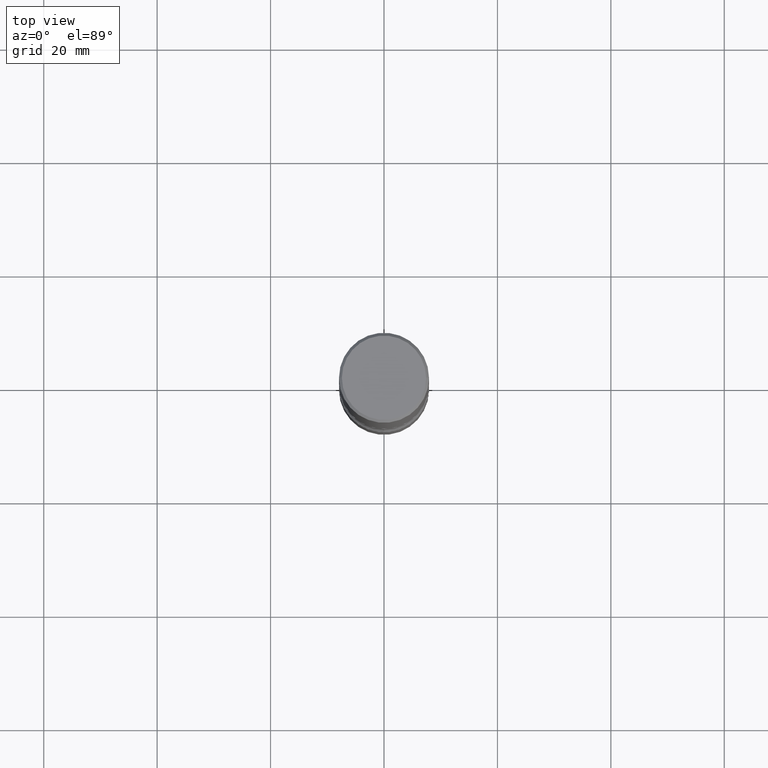
[diagram: clean part render]
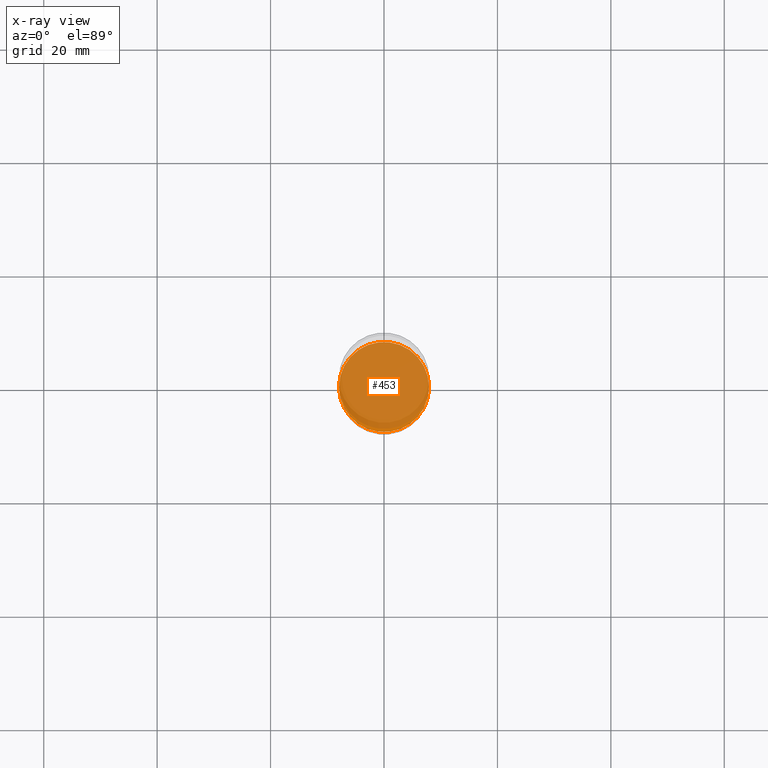
[diagram: x-ray — body ghosted, one internal face saturated and labeled with its STEP entity id]
A machine part, top view, then the same camera in x-ray: the body is ghosted and one INTERNAL B-rep face — a face not visible from any outside direction — is saturated and labeled: STEP entity #453.
In plain terms, the highlighted planar face has unit normal (0, -0, -1).
Its self-contained STEP definition (entity closure, byte-faithful):
#43 = AXIS2_PLACEMENT_3D ( 'NONE', #491, #485, #57 ) ;
#57 = DIRECTION ( 'NONE',  ( -1.000000000000000000, 6.982962677686265922E-15, -4.876176775795935793E-29 ) ) ;
#69 = AXIS2_PLACEMENT_3D ( 'NONE', #198, #329, #377 ) ;
#85 = DIRECTION ( 'NONE',  ( 1.000000000000000000, -6.982962677686265133E-15, 0.000000000000000000 ) ) ;
#92 = EDGE_CURVE ( 'NONE', #417, #487, #359, .T. ) ;
#107 = AXIS2_PLACEMENT_3D ( 'NONE', #191, #389, #85 ) ;
#130 = CIRCLE ( 'NONE', #69, 0.3125000000000001665 ) ;
#150 = PLANE ( 'NONE',  #43 ) ;
#154 = EDGE_LOOP ( 'NONE', ( #214, #423 ) ) ;
#191 = CARTESIAN_POINT ( 'NONE',  ( 9.170508023194261117E-29, -1.309305502066179584E-14, -3.749999999999999556 ) ) ;
#198 = CARTESIAN_POINT ( 'NONE',  ( 9.170508023194261117E-29, -1.309305502066179584E-14, -3.749999999999999556 ) ) ;
#214 = ORIENTED_EDGE ( 'NONE', *, *, #270, .T. ) ;
#270 = EDGE_CURVE ( 'NONE', #487, #417, #130, .T. ) ;
#329 = DIRECTION ( 'NONE',  ( -2.445468806185136597E-29, 3.491481338843145583E-15, 1.000000000000000000 ) ) ;
#349 = CARTESIAN_POINT ( 'NONE',  ( 0.3125000000000001665, -1.527523085743875418E-14, -3.749999999999999556 ) ) ;
#359 = CIRCLE ( 'NONE', #107, 0.3125000000000001665 ) ;
#377 = DIRECTION ( 'NONE',  ( 1.000000000000000000, -6.982962677686265133E-15, 0.000000000000000000 ) ) ;
#389 = DIRECTION ( 'NONE',  ( -2.445468806185136597E-29, 3.491481338843145583E-15, 1.000000000000000000 ) ) ;
#417 = VERTEX_POINT ( 'NONE', #533 ) ;
#423 = ORIENTED_EDGE ( 'NONE', *, *, #92, .T. ) ;
#450 = FACE_OUTER_BOUND ( 'NONE', #154, .T. ) ;
#453 = ADVANCED_FACE ( 'NONE', ( #450 ), #150, .F. ) ;
#485 = DIRECTION ( 'NONE',  ( 2.438088387897960049E-29, -3.491481338843145188E-15, -1.000000000000000000 ) ) ;
#487 = VERTEX_POINT ( 'NONE', #349 ) ;
#491 = CARTESIAN_POINT ( 'NONE',  ( 9.170508023194261117E-29, -1.309305502066179584E-14, -3.749999999999999556 ) ) ;
#533 = CARTESIAN_POINT ( 'NONE',  ( -0.3125000000000001665, -1.272309408099834754E-14, -3.749999999999999556 ) ) ;